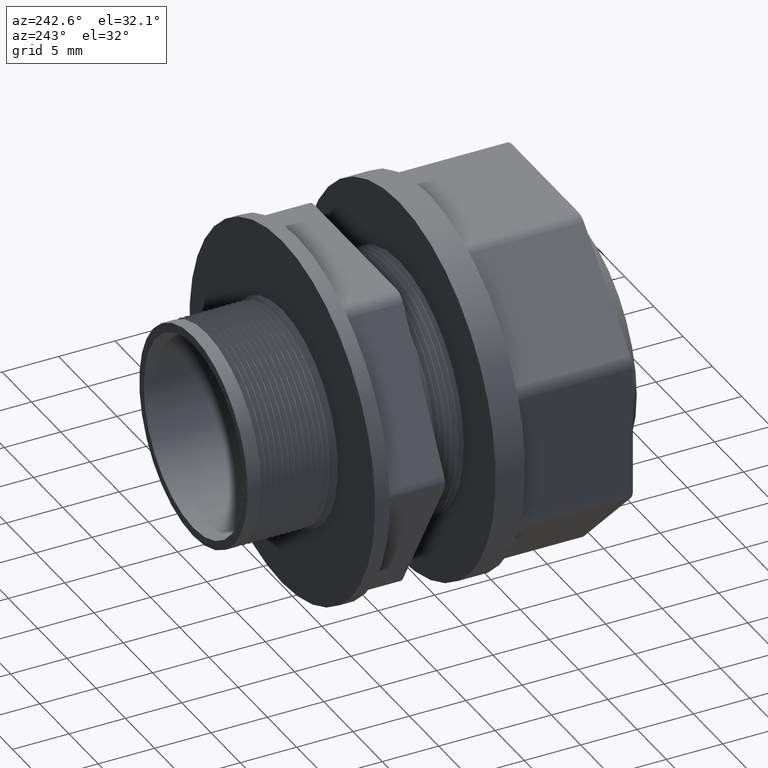
[diagram: clean part render]
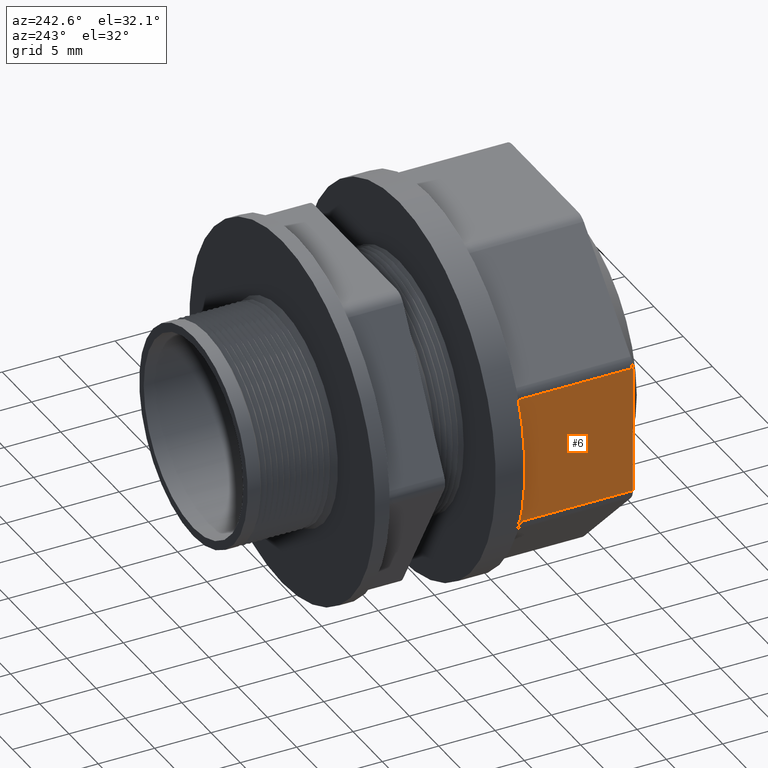
[diagram: same view with one face highlighted and labeled with its STEP entity id]
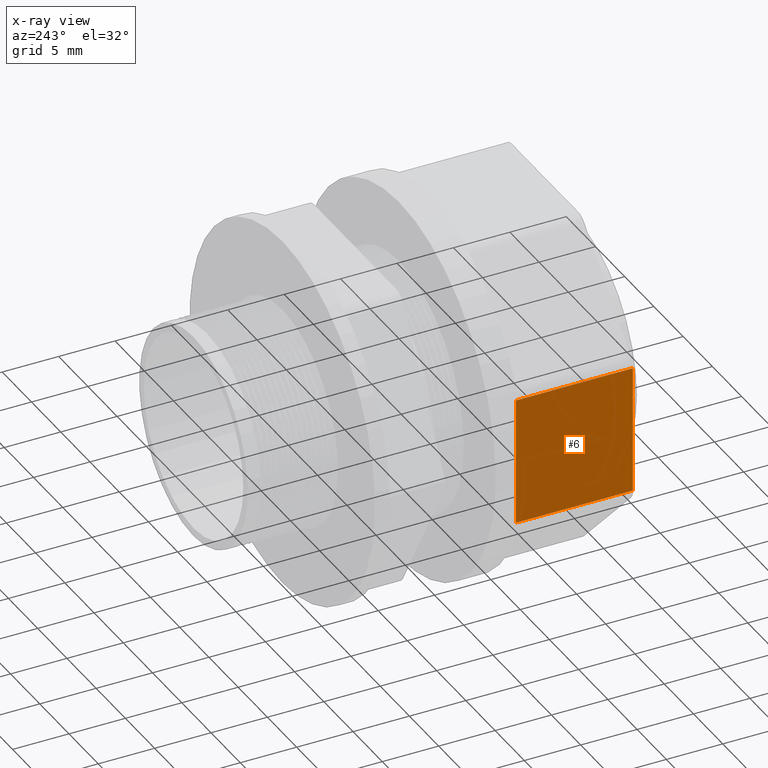
[diagram: x-ray of the same camera — body ghosted, the highlighted face saturated]
A machine part, auxiliary view. The second image highlights one B-rep face of the part: STEP entity #6.
The next image is the same camera in x-ray: the body ghosted, the highlighted face saturated — about 0% of this face is hidden behind the body in this view.
In plain terms, the highlighted planar face has unit normal (-1, 0, -0).
Its self-contained STEP definition (entity closure, byte-faithful):
#6 = ADVANCED_FACE ( 'NONE', ( #1209 ), #1208, .T. ) ;
#7 = EDGE_LOOP ( 'NONE', ( #417, #418, #317, #318 ) ) ;
#21 = EDGE_CURVE ( 'NONE', #22, #224, #1292, .T. ) ;
#22 = VERTEX_POINT ( 'NONE', #1288 ) ;
#136 = EDGE_CURVE ( 'NONE', #237, #138, #1588, .T. ) ;
#138 = VERTEX_POINT ( 'NONE', #1571 ) ;
#224 = VERTEX_POINT ( 'NONE', #1809 ) ;
#237 = VERTEX_POINT ( 'NONE', #1792 ) ;
#316 = EDGE_CURVE ( 'NONE', #237, #22, #1651, .T. ) ;
#317 = ORIENTED_EDGE ( 'NONE', *, *, #21, .T. ) ;
#318 = ORIENTED_EDGE ( 'NONE', *, *, #319, .T. ) ;
#319 = EDGE_CURVE ( 'NONE', #224, #138, #1646, .T. ) ;
#417 = ORIENTED_EDGE ( 'NONE', *, *, #136, .F. ) ;
#418 = ORIENTED_EDGE ( 'NONE', *, *, #316, .T. ) ;
#1204 = DIRECTION ( 'NONE',  ( -1.397301795899575200E-016, 0.0000000000000000000, 1.000000000000000000 ) ) ;
#1205 = DIRECTION ( 'NONE',  ( -1.000000000000000000, 0.0000000000000000000, -1.397301795899575200E-016 ) ) ;
#1206 = AXIS2_PLACEMENT_3D ( 'NONE', #1207, #1205, #1204 ) ;
#1207 = CARTESIAN_POINT ( 'NONE',  ( -0.5899999999999999700, 0.5100000000000000100, 0.2443860018001258200 ) ) ;
#1208 = PLANE ( 'NONE',  #1206 ) ;
#1209 = FACE_OUTER_BOUND ( 'NONE', #7, .T. ) ;
#1288 = CARTESIAN_POINT ( 'NONE',  ( -0.5899999999999999700, 0.5100000000000000100, 0.2236753236814710600 ) ) ;
#1289 = DIRECTION ( 'NONE',  ( 1.397301795899575200E-016, 0.0000000000000000000, -1.000000000000000000 ) ) ;
#1290 = VECTOR ( 'NONE', #1289, 39.37007874015748100 ) ;
#1291 = CARTESIAN_POINT ( 'NONE',  ( -0.5899999999999999700, 0.5100000000000000100, 0.2443860018001258200 ) ) ;
#1292 = LINE ( 'NONE', #1291, #1290 ) ;
#1567 = CARTESIAN_POINT ( 'NONE',  ( -0.5899999999999999700, 0.1019999999999999900, -1.676762155079492700E-017 ) ) ;
#1571 = CARTESIAN_POINT ( 'NONE',  ( -0.5899999999999999700, 0.1019999999999999900, -0.2236753236814714700 ) ) ;
#1572 = DIRECTION ( 'NONE',  ( 1.397301795899575200E-016, 0.0000000000000000000, -1.000000000000000000 ) ) ;
#1573 = VECTOR ( 'NONE', #1572, 39.37007874015748100 ) ;
#1588 = LINE ( 'NONE', #1567, #1573 ) ;
#1643 = DIRECTION ( 'NONE',  ( 0.0000000000000000000, -1.000000000000000000, 0.0000000000000000000 ) ) ;
#1644 = VECTOR ( 'NONE', #1643, 39.37007874015748100 ) ;
#1645 = CARTESIAN_POINT ( 'NONE',  ( -0.5899999999999999700, 0.5100000000000000100, -0.2236753236814714700 ) ) ;
#1646 = LINE ( 'NONE', #1645, #1644 ) ;
#1648 = DIRECTION ( 'NONE',  ( -0.0000000000000000000, 1.000000000000000000, -0.0000000000000000000 ) ) ;
#1649 = VECTOR ( 'NONE', #1648, 39.37007874015748100 ) ;
#1650 = CARTESIAN_POINT ( 'NONE',  ( -0.5899999999999999700, 0.5100000000000000100, 0.2236753236814710600 ) ) ;
#1651 = LINE ( 'NONE', #1650, #1649 ) ;
#1792 = CARTESIAN_POINT ( 'NONE',  ( -0.5899999999999999700, 0.1019999999999999900, 0.2236753236814710600 ) ) ;
#1809 = CARTESIAN_POINT ( 'NONE',  ( -0.5899999999999999700, 0.5100000000000000100, -0.2236753236814714700 ) ) ;